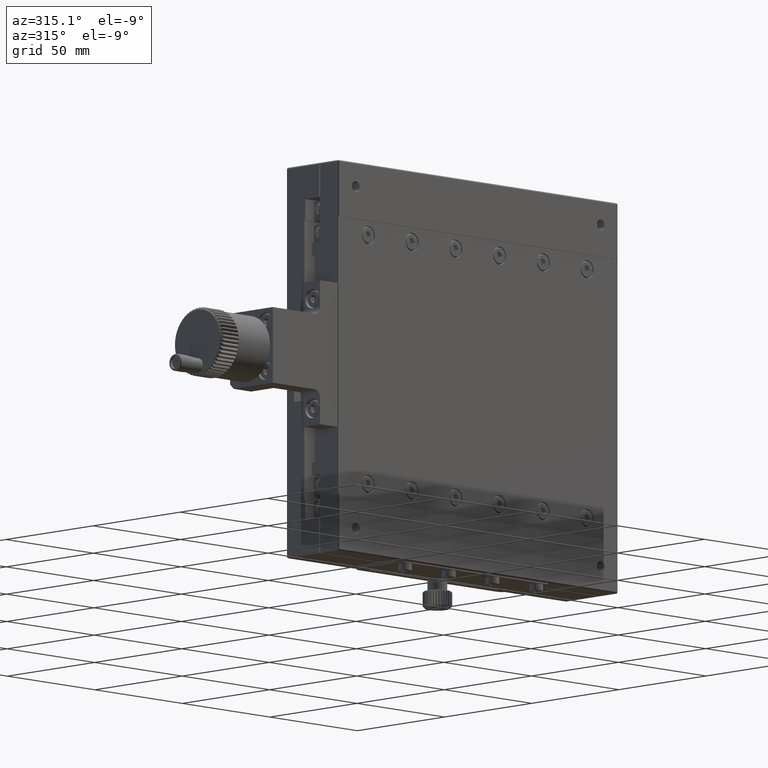
[diagram: clean part render]
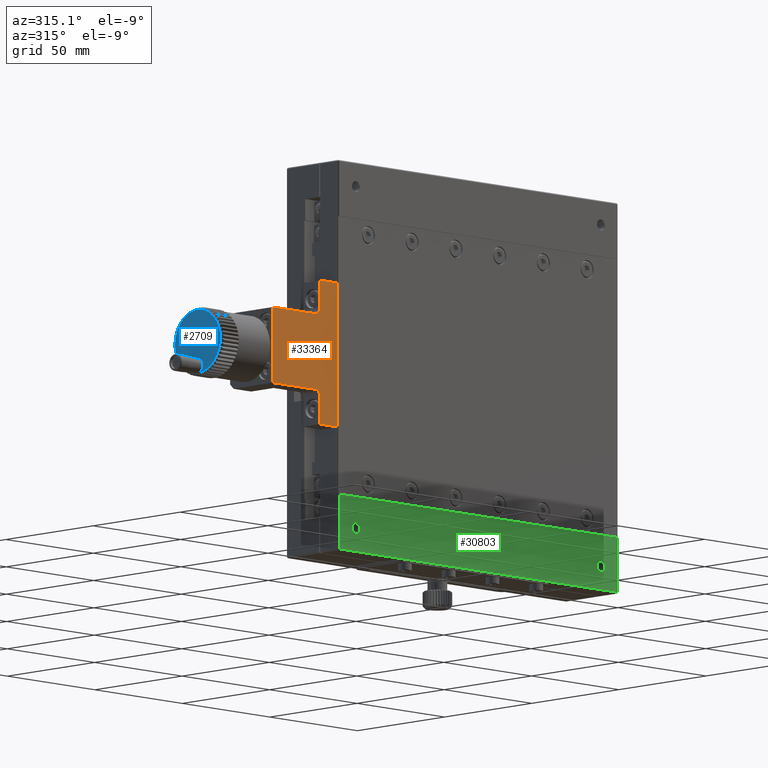
[diagram: same view with three faces highlighted in distinct colors, each labeled with its STEP entity id]
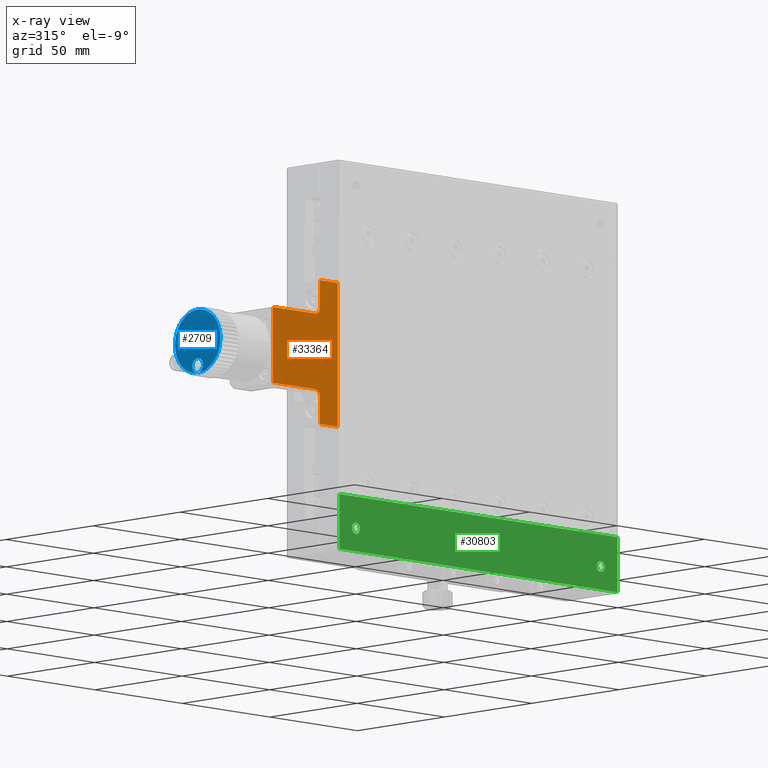
[diagram: x-ray of the same camera — body ghosted, the three highlighted faces saturated]
A machine part, auxiliary view with three faces highlighted in distinct colors.
The next image is the same camera in x-ray (body ghosted, the three faces saturated) — at least one of them is partly hidden behind the body in this view.
Their STEP definitions:

[orange] entity #33364 — the highlighted planar face has unit normal (0, 1, 0).
#434 = VERTEX_POINT ( 'NONE', #65584 ) ;
#448 = CARTESIAN_POINT ( 'NONE',  ( -196.9999999999999716, 0.5000000000000001110, -15.50000000000000178 ) ) ;
#804 = ORIENTED_EDGE ( 'NONE', *, *, #51371, .F. ) ;
#1085 = VECTOR ( 'NONE', #42197, 1000.000000000000000 ) ;
#4206 = DIRECTION ( 'NONE',  ( -1.000000000000000000, -0.000000000000000000, 0.000000000000000000 ) ) ;
#5408 = CARTESIAN_POINT ( 'NONE',  ( -196.9999999999999716, 0.5000000000000001110, 15.50000000000000000 ) ) ;
#6483 = VERTEX_POINT ( 'NONE', #448 ) ;
#6760 = ORIENTED_EDGE ( 'NONE', *, *, #22446, .F. ) ;
#8707 = CARTESIAN_POINT ( 'NONE',  ( -173.0000000000000284, 0.5000000000000004441, -18.50000000000000000 ) ) ;
#9053 = DIRECTION ( 'NONE',  ( 0.000000000000000000, -1.000000000000000000, 0.000000000000000000 ) ) ;
#9582 = DIRECTION ( 'NONE',  ( 0.000000000000000000, -0.000000000000000000, 1.000000000000000000 ) ) ;
#10237 = ORIENTED_EDGE ( 'NONE', *, *, #58634, .F. ) ;
#10876 = LINE ( 'NONE', #56347, #12486 ) ;
#12486 = VECTOR ( 'NONE', #34444, 1000.000000000000000 ) ;
#13791 = VECTOR ( 'NONE', #39583, 1000.000000000000000 ) ;
#16606 = DIRECTION ( 'NONE',  ( 0.000000000000000000, -0.000000000000000000, 1.000000000000000000 ) ) ;
#17812 = AXIS2_PLACEMENT_3D ( 'NONE', #30709, #58095, #24147 ) ;
#17978 = CARTESIAN_POINT ( 'NONE',  ( -170.0000000000000000, 0.5000000000000003331, -29.50000000000000355 ) ) ;
#18569 = LINE ( 'NONE', #39725, #43014 ) ;
#18712 = VECTOR ( 'NONE', #67171, 1000.000000000000000 ) ;
#19382 = ORIENTED_EDGE ( 'NONE', *, *, #33422, .F. ) ;
#19679 = EDGE_CURVE ( 'NONE', #46978, #40762, #31923, .T. ) ;
#20147 = LINE ( 'NONE', #69768, #68600 ) ;
#22063 = PLANE ( 'NONE',  #65058 ) ;
#22446 = EDGE_CURVE ( 'NONE', #34079, #46978, #49298, .T. ) ;
#22762 = LINE ( 'NONE', #58457, #13791 ) ;
#24147 = DIRECTION ( 'NONE',  ( 0.000000000000000000, 0.000000000000000000, -1.000000000000000000 ) ) ;
#24519 = VERTEX_POINT ( 'NONE', #63286 ) ;
#24628 = ORIENTED_EDGE ( 'NONE', *, *, #71094, .F. ) ;
#24908 = CARTESIAN_POINT ( 'NONE',  ( -173.0000000000000284, 0.5000000000000000000, 29.50000000000000355 ) ) ;
#25639 = EDGE_CURVE ( 'NONE', #41382, #34079, #18569, .T. ) ;
#28330 = ORIENTED_EDGE ( 'NONE', *, *, #25639, .F. ) ;
#30709 = CARTESIAN_POINT ( 'NONE',  ( -173.0000000000000284, 0.5000000000000004441, 18.50000000000000000 ) ) ;
#31555 = CARTESIAN_POINT ( 'NONE',  ( -173.0000000000000284, 0.5000000000000000000, -15.50000000000000355 ) ) ;
#31923 = LINE ( 'NONE', #52787, #1085 ) ;
#33364 = ADVANCED_FACE ( 'NONE', ( #71673 ), #22063, .F. ) ;
#33422 = EDGE_CURVE ( 'NONE', #24519, #45056, #22762, .T. ) ;
#33591 = CARTESIAN_POINT ( 'NONE',  ( -170.0000000000000000, 0.5000000000000004441, -18.50000000000000000 ) ) ;
#34079 = VERTEX_POINT ( 'NONE', #42306 ) ;
#34444 = DIRECTION ( 'NONE',  ( -0.000000000000000000, -0.000000000000000000, 1.000000000000000000 ) ) ;
#39583 = DIRECTION ( 'NONE',  ( -0.000000000000000000, -0.000000000000000000, -1.000000000000000000 ) ) ;
#39725 = CARTESIAN_POINT ( 'NONE',  ( -173.0000000000000284, 0.5000000000000000000, 15.50000000000000000 ) ) ;
#40762 = VERTEX_POINT ( 'NONE', #44924 ) ;
#41382 = VERTEX_POINT ( 'NONE', #5408 ) ;
#42197 = DIRECTION ( 'NONE',  ( -0.000000000000000000, -0.000000000000000000, 1.000000000000000000 ) ) ;
#42306 = CARTESIAN_POINT ( 'NONE',  ( -173.0000000000000284, 0.5000000000000004441, 15.49999999999998401 ) ) ;
#43014 = VECTOR ( 'NONE', #61615, 1000.000000000000000 ) ;
#44350 = DIRECTION ( 'NONE',  ( 0.000000000000000000, 1.000000000000000000, 0.000000000000000000 ) ) ;
#44878 = EDGE_CURVE ( 'NONE', #434, #6483, #48336, .T. ) ;
#44924 = CARTESIAN_POINT ( 'NONE',  ( -170.0000000000000000, 0.5000000000000003331, 29.50000000000000355 ) ) ;
#45056 = VERTEX_POINT ( 'NONE', #54521 ) ;
#46978 = VERTEX_POINT ( 'NONE', #55109 ) ;
#48336 = LINE ( 'NONE', #31555, #71287 ) ;
#48735 = CARTESIAN_POINT ( 'NONE',  ( -173.0000000000000284, 0.5000000000000000000, 18.50000000000000000 ) ) ;
#49298 = CIRCLE ( 'NONE', #17812, 3.000000000000030198 ) ;
#49555 = AXIS2_PLACEMENT_3D ( 'NONE', #8707, #9053, #69247 ) ;
#51371 = EDGE_CURVE ( 'NONE', #45056, #71048, #55519, .T. ) ;
#51574 = ORIENTED_EDGE ( 'NONE', *, *, #44878, .F. ) ;
#52346 = VERTEX_POINT ( 'NONE', #33591 ) ;
#52787 = CARTESIAN_POINT ( 'NONE',  ( -170.0000000000000000, 0.5000000000000004441, 18.50000000000000000 ) ) ;
#54109 = ORIENTED_EDGE ( 'NONE', *, *, #19679, .F. ) ;
#54521 = CARTESIAN_POINT ( 'NONE',  ( -160.0000000000000000, 0.5000000000000000000, -29.50000000000000355 ) ) ;
#55109 = CARTESIAN_POINT ( 'NONE',  ( -169.9999999999999716, 0.5000000000000004441, 18.50000000000000000 ) ) ;
#55519 = LINE ( 'NONE', #60661, #18712 ) ;
#56347 = CARTESIAN_POINT ( 'NONE',  ( -170.0000000000000000, 0.5000000000000004441, -29.50000000000000355 ) ) ;
#56527 = CIRCLE ( 'NONE', #49555, 3.000000000000030198 ) ;
#58095 = DIRECTION ( 'NONE',  ( 0.000000000000000000, -1.000000000000000000, 0.000000000000000000 ) ) ;
#58457 = CARTESIAN_POINT ( 'NONE',  ( -160.0000000000000000, 0.4999999999999997780, 80.00000000000000000 ) ) ;
#58634 = EDGE_CURVE ( 'NONE', #40762, #24519, #63595, .T. ) ;
#60321 = VECTOR ( 'NONE', #71471, 1000.000000000000000 ) ;
#60661 = CARTESIAN_POINT ( 'NONE',  ( -173.0000000000000284, 0.5000000000000000000, -29.50000000000000355 ) ) ;
#61615 = DIRECTION ( 'NONE',  ( 1.000000000000000000, 0.000000000000000000, -0.000000000000000000 ) ) ;
#63286 = CARTESIAN_POINT ( 'NONE',  ( -160.0000000000000000, 0.5000000000000002220, 29.50000000000000000 ) ) ;
#63595 = LINE ( 'NONE', #24908, #60321 ) ;
#65058 = AXIS2_PLACEMENT_3D ( 'NONE', #48735, #44350, #16606 ) ;
#65584 = CARTESIAN_POINT ( 'NONE',  ( -173.0000000000000284, 0.5000000000000004441, -15.50000000000000178 ) ) ;
#65647 = EDGE_CURVE ( 'NONE', #52346, #434, #56527, .T. ) ;
#67171 = DIRECTION ( 'NONE',  ( -1.000000000000000000, -0.000000000000000000, 0.000000000000000000 ) ) ;
#67561 = EDGE_CURVE ( 'NONE', #71048, #52346, #10876, .T. ) ;
#68314 = ORIENTED_EDGE ( 'NONE', *, *, #65647, .F. ) ;
#68600 = VECTOR ( 'NONE', #9582, 1000.000000000000000 ) ;
#69247 = DIRECTION ( 'NONE',  ( 0.000000000000000000, 0.000000000000000000, -1.000000000000000000 ) ) ;
#69768 = CARTESIAN_POINT ( 'NONE',  ( -197.0000000000000000, 0.5000000000000000000, 18.50000000000000000 ) ) ;
#71048 = VERTEX_POINT ( 'NONE', #17978 ) ;
#71094 = EDGE_CURVE ( 'NONE', #6483, #41382, #20147, .T. ) ;
#71238 = ORIENTED_EDGE ( 'NONE', *, *, #67561, .F. ) ;
#71287 = VECTOR ( 'NONE', #4206, 1000.000000000000000 ) ;
#71444 = EDGE_LOOP ( 'NONE', ( #51574, #68314, #71238, #804, #19382, #10237, #54109, #6760, #28330, #24628 ) ) ;
#71471 = DIRECTION ( 'NONE',  ( 1.000000000000000000, 0.000000000000000000, -0.000000000000000000 ) ) ;
#71673 = FACE_OUTER_BOUND ( 'NONE', #71444, .T. ) ;

[blue] entity #2709 — the highlighted planar face has unit normal (1, 0, 0).
#306 = CARTESIAN_POINT ( 'NONE',  ( -225.0000000000000000, 15.50000000000000178, 0.000000000000000000 ) ) ;
#457 = DIRECTION ( 'NONE',  ( 1.000000000000000000, -9.912705577010328508E-16, 0.000000000000000000 ) ) ;
#724 = DIRECTION ( 'NONE',  ( 0.000000000000000000, 1.000000000000000000, 0.000000000000000000 ) ) ;
#827 = CARTESIAN_POINT ( 'NONE',  ( -225.0000000000000000, 15.50000000000000178, 0.000000000000000000 ) ) ;
#833 = CARTESIAN_POINT ( 'NONE',  ( -225.0000000000000000, 15.50000000000000178, 0.000000000000000000 ) ) ;
#1351 = CIRCLE ( 'NONE', #67679, 12.99999999999999645 ) ;
#1387 = CARTESIAN_POINT ( 'NONE',  ( -225.0000000000000000, 15.50000000000000178, 0.000000000000000000 ) ) ;
#1524 = VERTEX_POINT ( 'NONE', #16528 ) ;
#1535 = CIRCLE ( 'NONE', #63266, 12.99999999999999645 ) ;
#1757 = VERTEX_POINT ( 'NONE', #48848 ) ;
#1820 = DIRECTION ( 'NONE',  ( 1.000000000000000000, -9.912705577010328508E-16, 0.000000000000000000 ) ) ;
#1881 = CARTESIAN_POINT ( 'NONE',  ( -225.0000000000000000, 15.50000000000000178, 0.000000000000000000 ) ) ;
#1929 = EDGE_CURVE ( 'NONE', #31126, #43631, #54233, .T. ) ;
#1963 = ORIENTED_EDGE ( 'NONE', *, *, #7854, .F. ) ;
#2107 = CARTESIAN_POINT ( 'NONE',  ( -225.0000000000000000, 15.50000000000000178, 0.000000000000000000 ) ) ;
#2193 = CARTESIAN_POINT ( 'NONE',  ( -225.0000000000000000, 15.50000000000000178, 0.000000000000000000 ) ) ;
#2210 = CIRCLE ( 'NONE', #42925, 12.99999999999999645 ) ;
#2220 = DIRECTION ( 'NONE',  ( 0.000000000000000000, 1.000000000000000000, 0.000000000000000000 ) ) ;
#2514 = ORIENTED_EDGE ( 'NONE', *, *, #18478, .F. ) ;
#2560 = DIRECTION ( 'NONE',  ( -1.000000000000000000, 0.000000000000000000, 0.000000000000000000 ) ) ;
#2571 = ORIENTED_EDGE ( 'NONE', *, *, #65085, .F. ) ;
#2709 = ADVANCED_FACE ( 'NONE', ( #36358 ), #36002, .F. ) ;
#2803 = DIRECTION ( 'NONE',  ( 1.000000000000000000, -9.912705577010328508E-16, 0.000000000000000000 ) ) ;
#2869 = VERTEX_POINT ( 'NONE', #5579 ) ;
#3111 = ORIENTED_EDGE ( 'NONE', *, *, #31425, .F. ) ;
#3288 = DIRECTION ( 'NONE',  ( 1.000000000000000000, -9.912705577010328508E-16, 0.000000000000000000 ) ) ;
#3424 = DIRECTION ( 'NONE',  ( 0.000000000000000000, 1.000000000000000000, 0.000000000000000000 ) ) ;
#3437 = CIRCLE ( 'NONE', #31354, 12.99999999999999645 ) ;
#3471 = CARTESIAN_POINT ( 'NONE',  ( -225.0000000000000000, 15.50000000000000178, 0.000000000000000000 ) ) ;
#3768 = DIRECTION ( 'NONE',  ( 1.000000000000000000, -9.912705577010328508E-16, 0.000000000000000000 ) ) ;
#4373 = EDGE_CURVE ( 'NONE', #70522, #16192, #67693, .T. ) ;
#4691 = ORIENTED_EDGE ( 'NONE', *, *, #59096, .F. ) ;
#4881 = DIRECTION ( 'NONE',  ( 0.000000000000000000, 1.000000000000000000, 0.000000000000000000 ) ) ;
#5045 = AXIS2_PLACEMENT_3D ( 'NONE', #827, #40184, #12852 ) ;
#5084 = EDGE_CURVE ( 'NONE', #41779, #10204, #20514, .T. ) ;
#5109 = CARTESIAN_POINT ( 'NONE',  ( -225.0000000000000000, 3.412905683449547922, 4.785619184902032863 ) ) ;
#5159 = CARTESIAN_POINT ( 'NONE',  ( -225.0000000000000000, 3.412905683449582561, -4.785619184902124346 ) ) ;
#5347 = AXIS2_PLACEMENT_3D ( 'NONE', #37936, #71132, #53662 ) ;
#5579 = CARTESIAN_POINT ( 'NONE',  ( -225.0000000000000000, 2.908418905324481329, 3.232968533143921075 ) ) ;
#5607 = EDGE_CURVE ( 'NONE', #34502, #27716, #32124, .T. ) ;
#5608 = VERTEX_POINT ( 'NONE', #56972 ) ;
#5637 = EDGE_CURVE ( 'NONE', #18333, #5608, #70547, .T. ) ;
#6405 = CARTESIAN_POINT ( 'NONE',  ( -225.0000000000000000, 15.50000000000000178, 0.000000000000000000 ) ) ;
#6570 = EDGE_CURVE ( 'NONE', #16192, #67599, #71906, .T. ) ;
#6750 = CARTESIAN_POINT ( 'NONE',  ( -225.0000000000000000, 15.50000000000000178, 0.000000000000000000 ) ) ;
#7374 = DIRECTION ( 'NONE',  ( 1.000000000000000000, -9.912705577010328508E-16, 0.000000000000000000 ) ) ;
#7732 = CARTESIAN_POINT ( 'NONE',  ( -225.0000000000000000, 15.50000000000000178, 0.000000000000000000 ) ) ;
#7806 = VERTEX_POINT ( 'NONE', #63889 ) ;
#7807 = AXIS2_PLACEMENT_3D ( 'NONE', #14018, #8542, #30758 ) ;
#7854 = EDGE_CURVE ( 'NONE', #53985, #22403, #40860, .T. ) ;
#7878 = CIRCLE ( 'NONE', #55572, 12.99999999999999645 ) ;
#7881 = AXIS2_PLACEMENT_3D ( 'NONE', #64774, #31210, #64439 ) ;
#8144 = EDGE_CURVE ( 'NONE', #5608, #17860, #59480, .T. ) ;
#8249 = ORIENTED_EDGE ( 'NONE', *, *, #25973, .F. ) ;
#8251 = CARTESIAN_POINT ( 'NONE',  ( -225.0000000000000000, 23.78651186673515383, 10.01667215608787664 ) ) ;
#8268 = DIRECTION ( 'NONE',  ( 0.000000000000000000, 1.000000000000000000, 0.000000000000000000 ) ) ;
#8379 = CARTESIAN_POINT ( 'NONE',  ( -225.0000000000000000, 2.602508882908406207, -1.629332036336429868 ) ) ;
#8407 = EDGE_CURVE ( 'NONE', #45443, #53793, #1351, .T. ) ;
#8449 = CARTESIAN_POINT ( 'NONE',  ( -225.0000000000000000, 28.39749111709161156, -1.629332036336249789 ) ) ;
#8542 = DIRECTION ( 'NONE',  ( 1.000000000000000000, -9.912705577010328508E-16, 0.000000000000000000 ) ) ;
#8848 = DIRECTION ( 'NONE',  ( 1.000000000000000000, -9.912705577010328508E-16, 0.000000000000000000 ) ) ;
#9409 = DIRECTION ( 'NONE',  ( 1.000000000000000000, -9.912705577010328508E-16, 0.000000000000000000 ) ) ;
#9479 = ORIENTED_EDGE ( 'NONE', *, *, #32600, .F. ) ;
#9520 = EDGE_CURVE ( 'NONE', #41103, #41779, #31632, .T. ) ;
#9592 = ORIENTED_EDGE ( 'NONE', *, *, #66732, .F. ) ;
#10204 = VERTEX_POINT ( 'NONE', #68162 ) ;
#10218 = DIRECTION ( 'NONE',  ( 0.000000000000000000, 1.000000000000000000, 0.000000000000000000 ) ) ;
#10602 = DIRECTION ( 'NONE',  ( 1.000000000000000000, -9.912705577010328508E-16, 0.000000000000000000 ) ) ;
#11099 = CIRCLE ( 'NONE', #14609, 12.99999999999999645 ) ;
#11131 = VERTEX_POINT ( 'NONE', #8379 ) ;
#11141 = VERTEX_POINT ( 'NONE', #58702 ) ;
#11379 = CIRCLE ( 'NONE', #7881, 12.99999999999999645 ) ;
#11394 = CARTESIAN_POINT ( 'NONE',  ( -225.0000000000000000, 15.50000000000000178, 0.000000000000000000 ) ) ;
#11414 = DIRECTION ( 'NONE',  ( 1.000000000000000000, -9.912705577010328508E-16, 0.000000000000000000 ) ) ;
#11961 = ORIENTED_EDGE ( 'NONE', *, *, #65965, .F. ) ;
#12072 = CARTESIAN_POINT ( 'NONE',  ( -225.0000000000000000, 28.09158109467554354, -3.232968533143833589 ) ) ;
#12275 = CARTESIAN_POINT ( 'NONE',  ( -225.0000000000000000, 15.50000000000000178, 0.000000000000000000 ) ) ;
#12348 = AXIS2_PLACEMENT_3D ( 'NONE', #26796, #49059, #71290 ) ;
#12349 = DIRECTION ( 'NONE',  ( 0.000000000000000000, 1.000000000000000000, 0.000000000000000000 ) ) ;
#12465 = CIRCLE ( 'NONE', #7807, 12.99999999999999645 ) ;
#12704 = CIRCLE ( 'NONE', #62774, 12.99999999999999645 ) ;
#12716 = CIRCLE ( 'NONE', #26686, 12.99999999999999645 ) ;
#12843 = DIRECTION ( 'NONE',  ( 0.000000000000000000, 1.000000000000000000, 0.000000000000000000 ) ) ;
#12852 = DIRECTION ( 'NONE',  ( 0.000000000000000000, 1.000000000000000000, 0.000000000000000000 ) ) ;
#12894 = ORIENTED_EDGE ( 'NONE', *, *, #48218, .F. ) ;
#13090 = AXIS2_PLACEMENT_3D ( 'NONE', #37121, #9409, #65888 ) ;
#13119 = CARTESIAN_POINT ( 'NONE',  ( -225.0000000000000000, 7.213488133264913671, -10.01667215608793882 ) ) ;
#13242 = EDGE_CURVE ( 'NONE', #1757, #21343, #26696, .T. ) ;
#13550 = CARTESIAN_POINT ( 'NONE',  ( -225.0000000000000000, 15.50000000000000178, 0.000000000000000000 ) ) ;
#13621 = CIRCLE ( 'NONE', #47418, 12.99999999999999645 ) ;
#13904 = CARTESIAN_POINT ( 'NONE',  ( -225.0000000000000000, 21.03513079034749111, -11.76275168206130139 ) ) ;
#13998 = DIRECTION ( 'NONE',  ( 1.000000000000000000, -9.912705577010328508E-16, 0.000000000000000000 ) ) ;
#14018 = CARTESIAN_POINT ( 'NONE',  ( -225.0000000000000000, 15.50000000000000178, 0.000000000000000000 ) ) ;
#14092 = CARTESIAN_POINT ( 'NONE',  ( -225.0000000000000000, 15.50000000000000178, 0.000000000000000000 ) ) ;
#14566 = DIRECTION ( 'NONE',  ( 0.000000000000000000, 1.000000000000000000, 0.000000000000000000 ) ) ;
#14609 = AXIS2_PLACEMENT_3D ( 'NONE', #33874, #1820, #724 ) ;
#14903 = ORIENTED_EDGE ( 'NONE', *, *, #46565, .F. ) ;
#15054 = CARTESIAN_POINT ( 'NONE',  ( -225.0000000000000000, 15.50000000000000178, 0.000000000000000000 ) ) ;
#15059 = CARTESIAN_POINT ( 'NONE',  ( -225.0000000000000000, 15.50000000000000178, 0.000000000000000000 ) ) ;
#15198 = CIRCLE ( 'NONE', #39667, 12.99999999999999645 ) ;
#15568 = DIRECTION ( 'NONE',  ( 0.000000000000000000, 1.000000000000000000, 0.000000000000000000 ) ) ;
#15812 = EDGE_CURVE ( 'NONE', #22178, #53985, #43125, .T. ) ;
#15814 = ORIENTED_EDGE ( 'NONE', *, *, #31744, .F. ) ;
#15858 = DIRECTION ( 'NONE',  ( 0.000000000000000000, 1.000000000000000000, 0.000000000000000000 ) ) ;
#16149 = CARTESIAN_POINT ( 'NONE',  ( -225.0000000000000000, 2.602508882908402654, 1.629332036336339939 ) ) ;
#16192 = VERTEX_POINT ( 'NONE', #69648 ) ;
#16331 = VERTEX_POINT ( 'NONE', #37536 ) ;
#16372 = ORIENTED_EDGE ( 'NONE', *, *, #67525, .F. ) ;
#16375 = EDGE_CURVE ( 'NONE', #57727, #20211, #15198, .T. ) ;
#16427 = CARTESIAN_POINT ( 'NONE',  ( -225.0000000000000000, 4.108013159426767480, 6.262797763323916911 ) ) ;
#16475 = CARTESIAN_POINT ( 'NONE',  ( -225.0000000000000000, 21.03513079034741295, 11.76275168206133337 ) ) ;
#16528 = CARTESIAN_POINT ( 'NONE',  ( -225.0000000000113687, 15.22049871197201831, -12.99699500000209440 ) ) ;
#16749 = DIRECTION ( 'NONE',  ( 0.000000000000000000, 1.000000000000000000, 0.000000000000000000 ) ) ;
#16758 = CARTESIAN_POINT ( 'NONE',  ( -225.0000000000000000, 22.46574833472887534, -10.97626303152901883 ) ) ;
#16784 = CARTESIAN_POINT ( 'NONE',  ( -225.0000000000000000, 15.50000000000000178, 0.000000000000000000 ) ) ;
#16852 = DIRECTION ( 'NONE',  ( 1.000000000000000000, -9.912705577010328508E-16, 0.000000000000000000 ) ) ;
#17019 = CARTESIAN_POINT ( 'NONE',  ( -225.0000000000000000, 24.97659215648085507, 8.899112377075269364 ) ) ;
#17136 = ORIENTED_EDGE ( 'NONE', *, *, #55374, .F. ) ;
#17320 = CARTESIAN_POINT ( 'NONE',  ( -225.0000000000000000, 9.964869209652590598, 11.76275168206133515 ) ) ;
#17334 = CARTESIAN_POINT ( 'NONE',  ( -225.0000000000000000, 8.534251665271280984, -10.97626303152911831 ) ) ;
#17418 = CIRCLE ( 'NONE', #40796, 12.99999999999999645 ) ;
#17713 = EDGE_CURVE ( 'NONE', #1524, #28159, #21959, .T. ) ;
#17860 = VERTEX_POINT ( 'NONE', #13119 ) ;
#17878 = EDGE_CURVE ( 'NONE', #2869, #61941, #51155, .T. ) ;
#18314 = CARTESIAN_POINT ( 'NONE',  ( -225.0000000000000000, 28.39749111709160445, 1.629332036336341716 ) ) ;
#18333 = VERTEX_POINT ( 'NONE', #48348 ) ;
#18478 = EDGE_CURVE ( 'NONE', #25469, #57727, #69893, .T. ) ;
#18756 = CARTESIAN_POINT ( 'NONE',  ( -225.0000000000000000, 8.534251665271201048, 10.97626303152906857 ) ) ;
#19289 = DIRECTION ( 'NONE',  ( 1.000000000000000000, -9.912705577010328508E-16, 0.000000000000000000 ) ) ;
#19331 = CIRCLE ( 'NONE', #57843, 12.99999999999999645 ) ;
#20136 = ORIENTED_EDGE ( 'NONE', *, *, #70529, .F. ) ;
#20211 = VERTEX_POINT ( 'NONE', #18314 ) ;
#20476 = AXIS2_PLACEMENT_3D ( 'NONE', #7732, #24837, #12843 ) ;
#20514 = CIRCLE ( 'NONE', #12348, 12.99999999999999645 ) ;
#20873 = DIRECTION ( 'NONE',  ( 1.000000000000000000, -9.912705577010328508E-16, 0.000000000000000000 ) ) ;
#21220 = DIRECTION ( 'NONE',  ( 0.000000000000000000, 1.000000000000000000, 0.000000000000000000 ) ) ;
#21343 = VERTEX_POINT ( 'NONE', #25581 ) ;
#21365 = ORIENTED_EDGE ( 'NONE', *, *, #55435, .F. ) ;
#21959 = CIRCLE ( 'NONE', #41849, 3.010000000008687948 ) ;
#22145 = DIRECTION ( 'NONE',  ( 0.000000000000000000, 1.000000000000000000, 0.000000000000000000 ) ) ;
#22178 = VERTEX_POINT ( 'NONE', #54836 ) ;
#22203 = DIRECTION ( 'NONE',  ( 1.000000000000000000, -9.912705577010328508E-16, 0.000000000000000000 ) ) ;
#22244 = DIRECTION ( 'NONE',  ( 0.000000000000000000, 1.000000000000000000, 0.000000000000000000 ) ) ;
#22317 = CARTESIAN_POINT ( 'NONE',  ( -225.0000000000000000, 15.50000000000000178, 0.000000000000000000 ) ) ;
#22403 = VERTEX_POINT ( 'NONE', #52623 ) ;
#22484 = DIRECTION ( 'NONE',  ( 1.000000000000000000, -9.912705577010328508E-16, 0.000000000000000000 ) ) ;
#22611 = EDGE_CURVE ( 'NONE', #11131, #11141, #49132, .T. ) ;
#22764 = ORIENTED_EDGE ( 'NONE', *, *, #13242, .F. ) ;
#23043 = ORIENTED_EDGE ( 'NONE', *, *, #37640, .F. ) ;
#23063 = AXIS2_PLACEMENT_3D ( 'NONE', #44430, #49882, #22145 ) ;
#23306 = DIRECTION ( 'NONE',  ( 0.000000000000000000, 1.000000000000000000, 0.000000000000000000 ) ) ;
#23402 = EDGE_CURVE ( 'NONE', #34552, #59786, #25239, .T. ) ;
#23590 = DIRECTION ( 'NONE',  ( 1.000000000000000000, -9.912705577010328508E-16, 0.000000000000000000 ) ) ;
#23652 = DIRECTION ( 'NONE',  ( 1.000000000000000000, -9.912705577010328508E-16, 0.000000000000000000 ) ) ;
#23664 = DIRECTION ( 'NONE',  ( 0.000000000000000000, 0.000000000000000000, 1.000000000000000000 ) ) ;
#23968 = VERTEX_POINT ( 'NONE', #17019 ) ;
#24014 = ORIENTED_EDGE ( 'NONE', *, *, #16375, .F. ) ;
#24082 = DIRECTION ( 'NONE',  ( 1.000000000000000000, -9.912705577010328508E-16, 0.000000000000000000 ) ) ;
#24159 = EDGE_CURVE ( 'NONE', #11141, #44372, #11379, .T. ) ;
#24271 = AXIS2_PLACEMENT_3D ( 'NONE', #15054, #3768, #60258 ) ;
#24439 = AXIS2_PLACEMENT_3D ( 'NONE', #833, #65819, #15858 ) ;
#24837 = DIRECTION ( 'NONE',  ( 1.000000000000000000, -9.912705577010328508E-16, 0.000000000000000000 ) ) ;
#24850 = ORIENTED_EDGE ( 'NONE', *, *, #53168, .F. ) ;
#25233 = ORIENTED_EDGE ( 'NONE', *, *, #9520, .F. ) ;
#25239 = CIRCLE ( 'NONE', #33391, 12.99999999999999645 ) ;
#25469 = VERTEX_POINT ( 'NONE', #8449 ) ;
#25574 = DIRECTION ( 'NONE',  ( 0.000000000000000000, 1.000000000000000000, 0.000000000000000000 ) ) ;
#25581 = CARTESIAN_POINT ( 'NONE',  ( -225.0000000000000000, 26.89198684057327782, -6.262797763323831646 ) ) ;
#25803 = CARTESIAN_POINT ( 'NONE',  ( -225.0000000000000000, 15.50000000000000178, 0.000000000000000000 ) ) ;
#25973 = EDGE_CURVE ( 'NONE', #20211, #64780, #53464, .T. ) ;
#26037 = EDGE_CURVE ( 'NONE', #27444, #34502, #12716, .T. ) ;
#26260 = CARTESIAN_POINT ( 'NONE',  ( -225.0000000000113687, 15.77950128802803320, -12.99699500000208907 ) ) ;
#26300 = DIRECTION ( 'NONE',  ( 0.000000000000000000, 1.000000000000000000, 0.000000000000000000 ) ) ;
#26665 = DIRECTION ( 'NONE',  ( 1.000000000000000000, -9.912705577010328508E-16, 0.000000000000000000 ) ) ;
#26686 = AXIS2_PLACEMENT_3D ( 'NONE', #12275, #51320, #40363 ) ;
#26696 = CIRCLE ( 'NONE', #45358, 12.99999999999999645 ) ;
#26796 = CARTESIAN_POINT ( 'NONE',  ( -225.0000000000000000, 15.50000000000000178, 0.000000000000000000 ) ) ;
#26875 = CARTESIAN_POINT ( 'NONE',  ( -225.0000000000000000, 28.09158109467551512, 3.232968533143923739 ) ) ;
#27091 = DIRECTION ( 'NONE',  ( 0.000000000000000000, 0.000000000000000000, -1.000000000000000000 ) ) ;
#27273 = ORIENTED_EDGE ( 'NONE', *, *, #23402, .F. ) ;
#27444 = VERTEX_POINT ( 'NONE', #48387 ) ;
#27592 = CARTESIAN_POINT ( 'NONE',  ( -225.0000000000000000, 15.50000000000000178, 0.000000000000000000 ) ) ;
#27716 = VERTEX_POINT ( 'NONE', #38753 ) ;
#28159 = VERTEX_POINT ( 'NONE', #26260 ) ;
#28688 = EDGE_CURVE ( 'NONE', #59786, #25469, #19331, .T. ) ;
#28741 = AXIS2_PLACEMENT_3D ( 'NONE', #22317, #16852, #39109 ) ;
#28764 = DIRECTION ( 'NONE',  ( 0.000000000000000000, 1.000000000000000000, 0.000000000000000000 ) ) ;
#28932 = CARTESIAN_POINT ( 'NONE',  ( -225.0000000000000000, 23.78651186673522488, -10.01667215608781802 ) ) ;
#28960 = AXIS2_PLACEMENT_3D ( 'NONE', #59551, #48572, #65358 ) ;
#28977 = DIRECTION ( 'NONE',  ( 1.000000000000000000, -9.912705577010328508E-16, 0.000000000000000000 ) ) ;
#29043 = ORIENTED_EDGE ( 'NONE', *, *, #45681, .F. ) ;
#29347 = EDGE_CURVE ( 'NONE', #59163, #11131, #69485, .T. ) ;
#29782 = ORIENTED_EDGE ( 'NONE', *, *, #57954, .F. ) ;
#29828 = CARTESIAN_POINT ( 'NONE',  ( -225.0000000000000000, 15.50000000000000178, 0.000000000000000000 ) ) ;
#30211 = CARTESIAN_POINT ( 'NONE',  ( -225.0000000000000000, 15.50000000000000178, 0.000000000000000000 ) ) ;
#30322 = DIRECTION ( 'NONE',  ( 1.000000000000000000, -9.912705577010328508E-16, 0.000000000000000000 ) ) ;
#30358 = AXIS2_PLACEMENT_3D ( 'NONE', #40851, #46311, #28764 ) ;
#30452 = DIRECTION ( 'NONE',  ( 0.000000000000000000, 1.000000000000000000, 0.000000000000000000 ) ) ;
#30758 = DIRECTION ( 'NONE',  ( 0.000000000000000000, 1.000000000000000000, 0.000000000000000000 ) ) ;
#30849 = DIRECTION ( 'NONE',  ( 1.000000000000000000, 0.000000000000000000, 0.000000000000000000 ) ) ;
#31126 = VERTEX_POINT ( 'NONE', #17320 ) ;
#31210 = DIRECTION ( 'NONE',  ( 1.000000000000000000, -9.912705577010328508E-16, 0.000000000000000000 ) ) ;
#31354 = AXIS2_PLACEMENT_3D ( 'NONE', #33609, #457, #43504 ) ;
#31425 = EDGE_CURVE ( 'NONE', #7806, #59700, #59252, .T. ) ;
#31632 = CIRCLE ( 'NONE', #40997, 12.99999999999999645 ) ;
#31744 = EDGE_CURVE ( 'NONE', #64780, #43601, #52278, .T. ) ;
#31803 = EDGE_CURVE ( 'NONE', #58006, #69182, #60435, .T. ) ;
#31937 = ORIENTED_EDGE ( 'NONE', *, *, #31803, .F. ) ;
#31967 = AXIS2_PLACEMENT_3D ( 'NONE', #54825, #30849, #27091 ) ;
#32035 = AXIS2_PLACEMENT_3D ( 'NONE', #67614, #40255, #55585 ) ;
#32123 = CIRCLE ( 'NONE', #41499, 12.99999999999999645 ) ;
#32124 = CIRCLE ( 'NONE', #20476, 12.99999999999999645 ) ;
#32539 = CIRCLE ( 'NONE', #52434, 12.99999999999999645 ) ;
#32600 = EDGE_CURVE ( 'NONE', #43601, #60783, #68506, .T. ) ;
#32886 = EDGE_CURVE ( 'NONE', #69182, #56049, #45165, .T. ) ;
#33391 = AXIS2_PLACEMENT_3D ( 'NONE', #54347, #22203, #16749 ) ;
#33531 = CARTESIAN_POINT ( 'NONE',  ( -225.0000000000000000, 15.50000000000000178, 0.000000000000000000 ) ) ;
#33609 = CARTESIAN_POINT ( 'NONE',  ( -225.0000000000000000, 15.50000000000000178, 0.000000000000000000 ) ) ;
#33775 = EDGE_CURVE ( 'NONE', #60783, #66217, #1535, .T. ) ;
#33874 = CARTESIAN_POINT ( 'NONE',  ( -225.0000000000000000, 15.50000000000000178, 0.000000000000000000 ) ) ;
#34075 = ORIENTED_EDGE ( 'NONE', *, *, #5084, .F. ) ;
#34148 = DIRECTION ( 'NONE',  ( 1.000000000000000000, -9.912705577010328508E-16, 0.000000000000000000 ) ) ;
#34312 = DIRECTION ( 'NONE',  ( 0.000000000000000000, 1.000000000000000000, 0.000000000000000000 ) ) ;
#34502 = VERTEX_POINT ( 'NONE', #46957 ) ;
#34552 = VERTEX_POINT ( 'NONE', #42530 ) ;
#34759 = AXIS2_PLACEMENT_3D ( 'NONE', #6405, #67683, #60791 ) ;
#34963 = VERTEX_POINT ( 'NONE', #38002 ) ;
#35496 = VERTEX_POINT ( 'NONE', #8251 ) ;
#35802 = DIRECTION ( 'NONE',  ( 0.000000000000000000, 1.000000000000000000, 0.000000000000000000 ) ) ;
#35970 = AXIS2_PLACEMENT_3D ( 'NONE', #44622, #11414, #65431 ) ;
#36002 = PLANE ( 'NONE',  #31967 ) ;
#36352 = ORIENTED_EDGE ( 'NONE', *, *, #44982, .F. ) ;
#36358 = FACE_OUTER_BOUND ( 'NONE', #58712, .T. ) ;
#36655 = EDGE_CURVE ( 'NONE', #51724, #47972, #11099, .T. ) ;
#36766 = ORIENTED_EDGE ( 'NONE', *, *, #56099, .F. ) ;
#37121 = CARTESIAN_POINT ( 'NONE',  ( -225.0000000000000000, 15.50000000000000178, 0.000000000000000000 ) ) ;
#37285 = ORIENTED_EDGE ( 'NONE', *, *, #17713, .F. ) ;
#37536 = CARTESIAN_POINT ( 'NONE',  ( -225.0000000000000000, 4.982779073122910241, 7.641208279804136083 ) ) ;
#37633 = AXIS2_PLACEMENT_3D ( 'NONE', #14092, #2803, #8268 ) ;
#37640 = EDGE_CURVE ( 'NONE', #59700, #16331, #69432, .T. ) ;
#37719 = CARTESIAN_POINT ( 'NONE',  ( -225.0000000000000000, 15.50000000000000178, 0.000000000000000000 ) ) ;
#37936 = CARTESIAN_POINT ( 'NONE',  ( -225.0000000000000000, 15.50000000000000178, 0.000000000000000000 ) ) ;
#38002 = CARTESIAN_POINT ( 'NONE',  ( -225.0000000000000000, 22.46574833472879718, 10.97626303152906857 ) ) ;
#38469 = EDGE_CURVE ( 'NONE', #56049, #22178, #66030, .T. ) ;
#38753 = CARTESIAN_POINT ( 'NONE',  ( -225.0000000000000000, 19.51722092687546706, -12.36373471184020900 ) ) ;
#39096 = ORIENTED_EDGE ( 'NONE', *, *, #8144, .F. ) ;
#39109 = DIRECTION ( 'NONE',  ( 0.000000000000000000, 1.000000000000000000, 0.000000000000000000 ) ) ;
#39321 = ORIENTED_EDGE ( 'NONE', *, *, #56375, .F. ) ;
#39535 = CIRCLE ( 'NONE', #48870, 12.99999999999999645 ) ;
#39598 = VERTEX_POINT ( 'NONE', #13904 ) ;
#39667 = AXIS2_PLACEMENT_3D ( 'NONE', #53235, #3288, #63561 ) ;
#39808 = CARTESIAN_POINT ( 'NONE',  ( -225.0000000000000000, 6.023407843519144933, 8.899112377075269364 ) ) ;
#40013 = DIRECTION ( 'NONE',  ( 1.000000000000000000, -9.912705577010328508E-16, 0.000000000000000000 ) ) ;
#40184 = DIRECTION ( 'NONE',  ( 1.000000000000000000, -9.912705577010328508E-16, 0.000000000000000000 ) ) ;
#40255 = DIRECTION ( 'NONE',  ( 1.000000000000000000, -9.912705577010328508E-16, 0.000000000000000000 ) ) ;
#40363 = DIRECTION ( 'NONE',  ( 0.000000000000000000, 1.000000000000000000, 0.000000000000000000 ) ) ;
#40498 = AXIS2_PLACEMENT_3D ( 'NONE', #62793, #46373, #51842 ) ;
#40796 = AXIS2_PLACEMENT_3D ( 'NONE', #11394, #60303, #4881 ) ;
#40851 = CARTESIAN_POINT ( 'NONE',  ( -225.0000000000000000, 15.50000000000000178, 0.000000000000000000 ) ) ;
#40860 = CIRCLE ( 'NONE', #65284, 12.99999999999999645 ) ;
#40997 = AXIS2_PLACEMENT_3D ( 'NONE', #15059, #20873, #21220 ) ;
#41103 = VERTEX_POINT ( 'NONE', #16758 ) ;
#41499 = AXIS2_PLACEMENT_3D ( 'NONE', #67334, #54979, #61512 ) ;
#41779 = VERTEX_POINT ( 'NONE', #28932 ) ;
#41849 = AXIS2_PLACEMENT_3D ( 'NONE', #56494, #2560, #23664 ) ;
#42258 = CARTESIAN_POINT ( 'NONE',  ( -225.0000000000000000, 13.06404291038493426, 12.76973425947629970 ) ) ;
#42293 = DIRECTION ( 'NONE',  ( 1.000000000000000000, -9.912705577010328508E-16, 0.000000000000000000 ) ) ;
#42530 = CARTESIAN_POINT ( 'NONE',  ( -225.0000000000000000, 27.58709431655048760, -4.785619184901947598 ) ) ;
#42925 = AXIS2_PLACEMENT_3D ( 'NONE', #25803, #66962, #15568 ) ;
#42937 = AXIS2_PLACEMENT_3D ( 'NONE', #58820, #8848, #70455 ) ;
#43125 = CIRCLE ( 'NONE', #48956, 12.99999999999999645 ) ;
#43428 = CARTESIAN_POINT ( 'NONE',  ( -225.0000000000000000, 15.50000000000000178, 0.000000000000000000 ) ) ;
#43504 = DIRECTION ( 'NONE',  ( 0.000000000000000000, 1.000000000000000000, 0.000000000000000000 ) ) ;
#43601 = VERTEX_POINT ( 'NONE', #55608 ) ;
#43631 = VERTEX_POINT ( 'NONE', #18756 ) ;
#43653 = CIRCLE ( 'NONE', #32035, 12.99999999999999645 ) ;
#43821 = AXIS2_PLACEMENT_3D ( 'NONE', #13550, #57350, #35802 ) ;
#44367 = ORIENTED_EDGE ( 'NONE', *, *, #38469, .F. ) ;
#44372 = VERTEX_POINT ( 'NONE', #5159 ) ;
#44430 = CARTESIAN_POINT ( 'NONE',  ( -225.0000000000000000, 15.50000000000000178, 0.000000000000000000 ) ) ;
#44622 = CARTESIAN_POINT ( 'NONE',  ( -225.0000000000000000, 15.50000000000000178, 0.000000000000000000 ) ) ;
#44756 = DIRECTION ( 'NONE',  ( 0.000000000000000000, 1.000000000000000000, 0.000000000000000000 ) ) ;
#44760 = ORIENTED_EDGE ( 'NONE', *, *, #50171, .F. ) ;
#44837 = DIRECTION ( 'NONE',  ( 1.000000000000000000, -9.912705577010328508E-16, 0.000000000000000000 ) ) ;
#44956 = CIRCLE ( 'NONE', #63615, 12.99999999999999645 ) ;
#44982 = EDGE_CURVE ( 'NONE', #35496, #34963, #71344, .T. ) ;
#45165 = CIRCLE ( 'NONE', #49904, 12.99999999999999645 ) ;
#45358 = AXIS2_PLACEMENT_3D ( 'NONE', #66044, #54400, #26300 ) ;
#45443 = VERTEX_POINT ( 'NONE', #49692 ) ;
#45525 = ORIENTED_EDGE ( 'NONE', *, *, #59645, .F. ) ;
#45681 = EDGE_CURVE ( 'NONE', #28159, #27444, #49301, .T. ) ;
#45798 = DIRECTION ( 'NONE',  ( 0.000000000000000000, 1.000000000000000000, 0.000000000000000000 ) ) ;
#45865 = DIRECTION ( 'NONE',  ( 0.000000000000000000, 1.000000000000000000, 0.000000000000000000 ) ) ;
#46224 = ORIENTED_EDGE ( 'NONE', *, *, #29347, .F. ) ;
#46311 = DIRECTION ( 'NONE',  ( 1.000000000000000000, -9.912705577010328508E-16, 0.000000000000000000 ) ) ;
#46373 = DIRECTION ( 'NONE',  ( 1.000000000000000000, -9.912705577010328508E-16, 0.000000000000000000 ) ) ;
#46565 = EDGE_CURVE ( 'NONE', #59717, #58006, #17418, .T. ) ;
#46957 = CARTESIAN_POINT ( 'NONE',  ( -225.0000000000000000, 17.93595708961515811, -12.76973425947628549 ) ) ;
#47053 = CARTESIAN_POINT ( 'NONE',  ( -225.0000000000000000, 15.50000000000000178, 0.000000000000000000 ) ) ;
#47196 = CARTESIAN_POINT ( 'NONE',  ( -225.0000000000000000, 16.31627675388129006, 12.97434746957093488 ) ) ;
#47399 = CARTESIAN_POINT ( 'NONE',  ( -225.0000000000000000, 15.50000000000000178, 0.000000000000000000 ) ) ;
#47418 = AXIS2_PLACEMENT_3D ( 'NONE', #47475, #30322, #25574 ) ;
#47475 = CARTESIAN_POINT ( 'NONE',  ( -225.0000000000000000, 15.50000000000000178, 0.000000000000000000 ) ) ;
#47591 = CIRCLE ( 'NONE', #34759, 12.99999999999999645 ) ;
#47593 = DIRECTION ( 'NONE',  ( 1.000000000000000000, -9.912705577010328508E-16, 0.000000000000000000 ) ) ;
#47869 = CARTESIAN_POINT ( 'NONE',  ( -225.0000000000000000, 15.50000000000000178, 0.000000000000000000 ) ) ;
#47972 = VERTEX_POINT ( 'NONE', #5109 ) ;
#48218 = EDGE_CURVE ( 'NONE', #43631, #7806, #12704, .T. ) ;
#48348 = CARTESIAN_POINT ( 'NONE',  ( -225.0000000000000000, 4.982779073122965308, -7.641208279804208914 ) ) ;
#48387 = CARTESIAN_POINT ( 'NONE',  ( -225.0000000000000000, 16.31627675388138599, -12.97434746957093132 ) ) ;
#48572 = DIRECTION ( 'NONE',  ( 1.000000000000000000, -9.912705577010328508E-16, 0.000000000000000000 ) ) ;
#48848 = CARTESIAN_POINT ( 'NONE',  ( -225.0000000000000000, 26.01722092687714749, -7.641208279804057035 ) ) ;
#48868 = ORIENTED_EDGE ( 'NONE', *, *, #5637, .F. ) ;
#48870 = AXIS2_PLACEMENT_3D ( 'NONE', #29828, #52108, #67780 ) ;
#48956 = AXIS2_PLACEMENT_3D ( 'NONE', #47869, #26665, #70444 ) ;
#48984 = CARTESIAN_POINT ( 'NONE',  ( -225.0000000000000000, 26.89198684057322808, 6.262797763323915134 ) ) ;
#49059 = DIRECTION ( 'NONE',  ( 1.000000000000000000, -9.912705577010328508E-16, 0.000000000000000000 ) ) ;
#49132 = CIRCLE ( 'NONE', #13090, 12.99999999999999645 ) ;
#49142 = CARTESIAN_POINT ( 'NONE',  ( -225.0000000000000000, 19.51722092687537824, 12.36373471184023920 ) ) ;
#49301 = CIRCLE ( 'NONE', #5045, 12.99999999999999645 ) ;
#49692 = CARTESIAN_POINT ( 'NONE',  ( -225.0000000000000000, 13.06404291038502308, -12.76973425947632279 ) ) ;
#49857 = DIRECTION ( 'NONE',  ( 0.000000000000000000, 1.000000000000000000, 0.000000000000000000 ) ) ;
#49882 = DIRECTION ( 'NONE',  ( 1.000000000000000000, -9.912705577010328508E-16, 0.000000000000000000 ) ) ;
#49904 = AXIS2_PLACEMENT_3D ( 'NONE', #47399, #42293, #14566 ) ;
#50171 = EDGE_CURVE ( 'NONE', #27716, #39598, #3437, .T. ) ;
#50329 = EDGE_CURVE ( 'NONE', #17860, #70522, #32539, .T. ) ;
#50587 = ORIENTED_EDGE ( 'NONE', *, *, #5607, .F. ) ;
#50850 = CARTESIAN_POINT ( 'NONE',  ( -225.0000000000000000, 26.01722092687709775, 7.641208279804133419 ) ) ;
#51155 = CIRCLE ( 'NONE', #60471, 12.99999999999999645 ) ;
#51320 = DIRECTION ( 'NONE',  ( 1.000000000000000000, -9.912705577010328508E-16, 0.000000000000000000 ) ) ;
#51417 = ORIENTED_EDGE ( 'NONE', *, *, #24159, .F. ) ;
#51724 = VERTEX_POINT ( 'NONE', #16427 ) ;
#51842 = DIRECTION ( 'NONE',  ( 0.000000000000000000, 1.000000000000000000, 0.000000000000000000 ) ) ;
#52108 = DIRECTION ( 'NONE',  ( 1.000000000000000000, -9.912705577010328508E-16, 0.000000000000000000 ) ) ;
#52278 = CIRCLE ( 'NONE', #42937, 12.99999999999999645 ) ;
#52434 = AXIS2_PLACEMENT_3D ( 'NONE', #62805, #7374, #34312 ) ;
#52623 = CARTESIAN_POINT ( 'NONE',  ( -225.0000000000000000, 11.48277907312461821, 12.36373471184023920 ) ) ;
#52901 = ORIENTED_EDGE ( 'NONE', *, *, #32886, .F. ) ;
#53051 = DIRECTION ( 'NONE',  ( 0.000000000000000000, 1.000000000000000000, 0.000000000000000000 ) ) ;
#53168 = EDGE_CURVE ( 'NONE', #10204, #1757, #56123, .T. ) ;
#53235 = CARTESIAN_POINT ( 'NONE',  ( -225.0000000000000000, 15.50000000000000178, 0.000000000000000000 ) ) ;
#53363 = ORIENTED_EDGE ( 'NONE', *, *, #17878, .F. ) ;
#53464 = CIRCLE ( 'NONE', #56955, 12.99999999999999645 ) ;
#53662 = DIRECTION ( 'NONE',  ( 0.000000000000000000, 1.000000000000000000, 0.000000000000000000 ) ) ;
#53793 = VERTEX_POINT ( 'NONE', #57254 ) ;
#53985 = VERTEX_POINT ( 'NONE', #42258 ) ;
#54233 = CIRCLE ( 'NONE', #5347, 12.99999999999999645 ) ;
#54295 = CIRCLE ( 'NONE', #70558, 12.99999999999999645 ) ;
#54347 = CARTESIAN_POINT ( 'NONE',  ( -225.0000000000000000, 15.50000000000000178, 0.000000000000000000 ) ) ;
#54359 = DIRECTION ( 'NONE',  ( 0.000000000000000000, 1.000000000000000000, 0.000000000000000000 ) ) ;
#54388 = AXIS2_PLACEMENT_3D ( 'NONE', #1881, #24082, #68603 ) ;
#54400 = DIRECTION ( 'NONE',  ( 1.000000000000000000, -9.912705577010328508E-16, 0.000000000000000000 ) ) ;
#54825 = CARTESIAN_POINT ( 'NONE',  ( -225.0000000000000000, 15.50000000000000000, 0.000000000000000000 ) ) ;
#54836 = CARTESIAN_POINT ( 'NONE',  ( -225.0000000000000000, 14.68372324611871171, 12.97434746957093488 ) ) ;
#54979 = DIRECTION ( 'NONE',  ( 1.000000000000000000, -9.912705577010328508E-16, 0.000000000000000000 ) ) ;
#55374 = EDGE_CURVE ( 'NONE', #34963, #59717, #44956, .T. ) ;
#55435 = EDGE_CURVE ( 'NONE', #39598, #41103, #32123, .T. ) ;
#55572 = AXIS2_PLACEMENT_3D ( 'NONE', #6750, #28977, #45798 ) ;
#55585 = DIRECTION ( 'NONE',  ( 0.000000000000000000, 1.000000000000000000, 0.000000000000000000 ) ) ;
#55608 = CARTESIAN_POINT ( 'NONE',  ( -225.0000000000000000, 27.58709431655045208, 4.785619184902038192 ) ) ;
#56049 = VERTEX_POINT ( 'NONE', #47196 ) ;
#56099 = EDGE_CURVE ( 'NONE', #23968, #35496, #12465, .T. ) ;
#56123 = CIRCLE ( 'NONE', #60840, 12.99999999999999645 ) ;
#56375 = EDGE_CURVE ( 'NONE', #47972, #2869, #13621, .T. ) ;
#56494 = CARTESIAN_POINT ( 'NONE',  ( -225.0000000000227374, 15.50000000000000000, -10.00000000000000000 ) ) ;
#56623 = AXIS2_PLACEMENT_3D ( 'NONE', #33531, #10602, #54359 ) ;
#56667 = AXIS2_PLACEMENT_3D ( 'NONE', #47053, #19289, #2220 ) ;
#56955 = AXIS2_PLACEMENT_3D ( 'NONE', #1387, #34148, #66980 ) ;
#56972 = CARTESIAN_POINT ( 'NONE',  ( -225.0000000000000000, 6.023407843519210658, -8.899112377075336866 ) ) ;
#57254 = CARTESIAN_POINT ( 'NONE',  ( -225.0000000000000000, 14.68372324611880586, -12.97434746957094198 ) ) ;
#57350 = DIRECTION ( 'NONE',  ( 1.000000000000000000, -9.912705577010328508E-16, 0.000000000000000000 ) ) ;
#57727 = VERTEX_POINT ( 'NONE', #60536 ) ;
#57843 = AXIS2_PLACEMENT_3D ( 'NONE', #27592, #23590, #72102 ) ;
#57954 = EDGE_CURVE ( 'NONE', #61941, #59163, #2210, .T. ) ;
#58006 = VERTEX_POINT ( 'NONE', #49142 ) ;
#58057 = CARTESIAN_POINT ( 'NONE',  ( -225.0000000000000000, 4.108013159426812777, -6.262797763323994182 ) ) ;
#58477 = ORIENTED_EDGE ( 'NONE', *, *, #36655, .F. ) ;
#58702 = CARTESIAN_POINT ( 'NONE',  ( -225.0000000000000000, 2.908418905324505754, -3.232968533144014334 ) ) ;
#58712 = EDGE_LOOP ( 'NONE', ( #29043, #37285, #66956, #69114, #45525, #70571, #69837, #68860, #39096, #48868, #16372, #9592, #51417, #71403, #46224, #29782, #53363, #39321, #58477, #11961, #23043, #3111, #12894, #60931, #4691, #1963, #67016, #44367, #52901, #31937, #14903, #17136, #36352, #36766, #20136, #68399, #9479, #15814, #8249, #24014, #2514, #70722, #27273, #2571, #22764, #24850, #34075, #25233, #21365, #44760, #50587, #63549 ) ) ;
#58820 = CARTESIAN_POINT ( 'NONE',  ( -225.0000000000000000, 15.50000000000000178, 0.000000000000000000 ) ) ;
#59096 = EDGE_CURVE ( 'NONE', #22403, #31126, #67310, .T. ) ;
#59163 = VERTEX_POINT ( 'NONE', #61184 ) ;
#59252 = CIRCLE ( 'NONE', #35970, 12.99999999999999645 ) ;
#59281 = CARTESIAN_POINT ( 'NONE',  ( -225.0000000000000000, 11.48277907312470525, -12.36373471184026585 ) ) ;
#59480 = CIRCLE ( 'NONE', #30358, 12.99999999999999645 ) ;
#59551 = CARTESIAN_POINT ( 'NONE',  ( -225.0000000000000000, 15.50000000000000178, 0.000000000000000000 ) ) ;
#59645 = EDGE_CURVE ( 'NONE', #67599, #45443, #69753, .T. ) ;
#59700 = VERTEX_POINT ( 'NONE', #39808 ) ;
#59717 = VERTEX_POINT ( 'NONE', #16475 ) ;
#59786 = VERTEX_POINT ( 'NONE', #12072 ) ;
#59970 = DIRECTION ( 'NONE',  ( 1.000000000000000000, -9.912705577010328508E-16, 0.000000000000000000 ) ) ;
#60258 = DIRECTION ( 'NONE',  ( 0.000000000000000000, 1.000000000000000000, 0.000000000000000000 ) ) ;
#60303 = DIRECTION ( 'NONE',  ( 1.000000000000000000, -9.912705577010328508E-16, 0.000000000000000000 ) ) ;
#60323 = AXIS2_PLACEMENT_3D ( 'NONE', #37719, #59970, #30452 ) ;
#60435 = CIRCLE ( 'NONE', #28960, 12.99999999999999645 ) ;
#60471 = AXIS2_PLACEMENT_3D ( 'NONE', #2193, #62327, #23306 ) ;
#60536 = CARTESIAN_POINT ( 'NONE',  ( -225.0000000000000000, 28.50000000000341061, -4.538925740497264226E-14 ) ) ;
#60783 = VERTEX_POINT ( 'NONE', #48984 ) ;
#60791 = DIRECTION ( 'NONE',  ( 0.000000000000000000, 1.000000000000000000, 0.000000000000000000 ) ) ;
#60840 = AXIS2_PLACEMENT_3D ( 'NONE', #68333, #13998, #3424 ) ;
#60931 = ORIENTED_EDGE ( 'NONE', *, *, #1929, .F. ) ;
#60960 = VERTEX_POINT ( 'NONE', #58057 ) ;
#61184 = CARTESIAN_POINT ( 'NONE',  ( -225.0000000000000000, 2.499999999996588507, 4.538925740497264226E-14 ) ) ;
#61512 = DIRECTION ( 'NONE',  ( 0.000000000000000000, 1.000000000000000000, 0.000000000000000000 ) ) ;
#61886 = DIRECTION ( 'NONE',  ( 1.000000000000000000, -9.912705577010328508E-16, 0.000000000000000000 ) ) ;
#61941 = VERTEX_POINT ( 'NONE', #16149 ) ;
#62011 = DIRECTION ( 'NONE',  ( 1.000000000000000000, -9.912705577010328508E-16, 0.000000000000000000 ) ) ;
#62327 = DIRECTION ( 'NONE',  ( 1.000000000000000000, -9.912705577010328508E-16, 0.000000000000000000 ) ) ;
#62774 = AXIS2_PLACEMENT_3D ( 'NONE', #30211, #23652, #12349 ) ;
#62793 = CARTESIAN_POINT ( 'NONE',  ( -225.0000000000000000, 15.50000000000000178, 0.000000000000000000 ) ) ;
#62805 = CARTESIAN_POINT ( 'NONE',  ( -225.0000000000000000, 15.50000000000000178, 0.000000000000000000 ) ) ;
#63260 = CARTESIAN_POINT ( 'NONE',  ( -225.0000000000000000, 17.93595708961506574, 12.76973425947630325 ) ) ;
#63266 = AXIS2_PLACEMENT_3D ( 'NONE', #16784, #62011, #22244 ) ;
#63549 = ORIENTED_EDGE ( 'NONE', *, *, #26037, .F. ) ;
#63561 = DIRECTION ( 'NONE',  ( 0.000000000000000000, 1.000000000000000000, 0.000000000000000000 ) ) ;
#63615 = AXIS2_PLACEMENT_3D ( 'NONE', #66630, #61886, #49857 ) ;
#63889 = CARTESIAN_POINT ( 'NONE',  ( -225.0000000000000000, 7.213488133264844393, 10.01667215608787842 ) ) ;
#64241 = AXIS2_PLACEMENT_3D ( 'NONE', #3471, #47593, #53051 ) ;
#64439 = DIRECTION ( 'NONE',  ( 0.000000000000000000, 1.000000000000000000, 0.000000000000000000 ) ) ;
#64774 = CARTESIAN_POINT ( 'NONE',  ( -225.0000000000000000, 15.50000000000000178, 0.000000000000000000 ) ) ;
#64780 = VERTEX_POINT ( 'NONE', #26875 ) ;
#65085 = EDGE_CURVE ( 'NONE', #21343, #34552, #43653, .T. ) ;
#65284 = AXIS2_PLACEMENT_3D ( 'NONE', #43428, #44837, #10218 ) ;
#65358 = DIRECTION ( 'NONE',  ( 0.000000000000000000, 1.000000000000000000, 0.000000000000000000 ) ) ;
#65431 = DIRECTION ( 'NONE',  ( 0.000000000000000000, 1.000000000000000000, 0.000000000000000000 ) ) ;
#65819 = DIRECTION ( 'NONE',  ( 1.000000000000000000, -9.912705577010328508E-16, 0.000000000000000000 ) ) ;
#65888 = DIRECTION ( 'NONE',  ( 0.000000000000000000, 1.000000000000000000, 0.000000000000000000 ) ) ;
#65965 = EDGE_CURVE ( 'NONE', #16331, #51724, #54295, .T. ) ;
#65970 = CIRCLE ( 'NONE', #28741, 12.99999999999999645 ) ;
#66030 = CIRCLE ( 'NONE', #54388, 12.99999999999999645 ) ;
#66044 = CARTESIAN_POINT ( 'NONE',  ( -225.0000000000000000, 15.50000000000000178, 0.000000000000000000 ) ) ;
#66217 = VERTEX_POINT ( 'NONE', #50850 ) ;
#66630 = CARTESIAN_POINT ( 'NONE',  ( -225.0000000000000000, 15.50000000000000178, 0.000000000000000000 ) ) ;
#66732 = EDGE_CURVE ( 'NONE', #44372, #60960, #65970, .T. ) ;
#66956 = ORIENTED_EDGE ( 'NONE', *, *, #71823, .F. ) ;
#66962 = DIRECTION ( 'NONE',  ( 1.000000000000000000, -9.912705577010328508E-16, 0.000000000000000000 ) ) ;
#66980 = DIRECTION ( 'NONE',  ( 0.000000000000000000, 1.000000000000000000, 0.000000000000000000 ) ) ;
#67016 = ORIENTED_EDGE ( 'NONE', *, *, #15812, .F. ) ;
#67310 = CIRCLE ( 'NONE', #23063, 12.99999999999999645 ) ;
#67334 = CARTESIAN_POINT ( 'NONE',  ( -225.0000000000000000, 15.50000000000000178, 0.000000000000000000 ) ) ;
#67525 = EDGE_CURVE ( 'NONE', #60960, #18333, #7878, .T. ) ;
#67599 = VERTEX_POINT ( 'NONE', #59281 ) ;
#67614 = CARTESIAN_POINT ( 'NONE',  ( -225.0000000000000000, 15.50000000000000178, 0.000000000000000000 ) ) ;
#67679 = AXIS2_PLACEMENT_3D ( 'NONE', #306, #22484, #44756 ) ;
#67683 = DIRECTION ( 'NONE',  ( 1.000000000000000000, -9.912705577010328508E-16, 0.000000000000000000 ) ) ;
#67693 = CIRCLE ( 'NONE', #64241, 12.99999999999999645 ) ;
#67780 = DIRECTION ( 'NONE',  ( 0.000000000000000000, 1.000000000000000000, 0.000000000000000000 ) ) ;
#68162 = CARTESIAN_POINT ( 'NONE',  ( -225.0000000000000000, 24.97659215648092257, -8.899112377075201863 ) ) ;
#68333 = CARTESIAN_POINT ( 'NONE',  ( -225.0000000000000000, 15.50000000000000178, 0.000000000000000000 ) ) ;
#68399 = ORIENTED_EDGE ( 'NONE', *, *, #33775, .F. ) ;
#68506 = CIRCLE ( 'NONE', #60323, 12.99999999999999645 ) ;
#68603 = DIRECTION ( 'NONE',  ( 0.000000000000000000, 1.000000000000000000, 0.000000000000000000 ) ) ;
#68860 = ORIENTED_EDGE ( 'NONE', *, *, #50329, .F. ) ;
#69114 = ORIENTED_EDGE ( 'NONE', *, *, #8407, .F. ) ;
#69182 = VERTEX_POINT ( 'NONE', #63260 ) ;
#69432 = CIRCLE ( 'NONE', #56623, 12.99999999999999645 ) ;
#69485 = CIRCLE ( 'NONE', #56667, 12.99999999999999645 ) ;
#69648 = CARTESIAN_POINT ( 'NONE',  ( -225.0000000000000000, 9.964869209652670534, -11.76275168206137423 ) ) ;
#69753 = CIRCLE ( 'NONE', #24271, 12.99999999999999645 ) ;
#69837 = ORIENTED_EDGE ( 'NONE', *, *, #4373, .F. ) ;
#69893 = CIRCLE ( 'NONE', #24439, 12.99999999999999645 ) ;
#70444 = DIRECTION ( 'NONE',  ( 0.000000000000000000, 1.000000000000000000, 0.000000000000000000 ) ) ;
#70455 = DIRECTION ( 'NONE',  ( 0.000000000000000000, 1.000000000000000000, 0.000000000000000000 ) ) ;
#70522 = VERTEX_POINT ( 'NONE', #17334 ) ;
#70529 = EDGE_CURVE ( 'NONE', #66217, #23968, #47591, .T. ) ;
#70547 = CIRCLE ( 'NONE', #43821, 12.99999999999999645 ) ;
#70558 = AXIS2_PLACEMENT_3D ( 'NONE', #2107, #40013, #45865 ) ;
#70571 = ORIENTED_EDGE ( 'NONE', *, *, #6570, .F. ) ;
#70722 = ORIENTED_EDGE ( 'NONE', *, *, #28688, .F. ) ;
#71132 = DIRECTION ( 'NONE',  ( 1.000000000000000000, -9.912705577010328508E-16, 0.000000000000000000 ) ) ;
#71290 = DIRECTION ( 'NONE',  ( 0.000000000000000000, 1.000000000000000000, 0.000000000000000000 ) ) ;
#71344 = CIRCLE ( 'NONE', #37633, 12.99999999999999645 ) ;
#71403 = ORIENTED_EDGE ( 'NONE', *, *, #22611, .F. ) ;
#71823 = EDGE_CURVE ( 'NONE', #53793, #1524, #39535, .T. ) ;
#71906 = CIRCLE ( 'NONE', #40498, 12.99999999999999645 ) ;
#72102 = DIRECTION ( 'NONE',  ( 0.000000000000000000, 1.000000000000000000, 0.000000000000000000 ) ) ;

[green] entity #30803 — the highlighted planar face has unit normal (0, -1, 0).
#1764 = CARTESIAN_POINT ( 'NONE',  ( -159.5000000000000000, -8.131516293641283255E-17, -79.50000000000000000 ) ) ;
#8261 = LINE ( 'NONE', #69496, #71970 ) ;
#8351 = VERTEX_POINT ( 'NONE', #24737 ) ;
#9331 = DIRECTION ( 'NONE',  ( -1.000000000000000000, 0.000000000000000000, -0.000000000000000000 ) ) ;
#10308 = DIRECTION ( 'NONE',  ( 0.000000000000000000, 0.000000000000000000, 1.000000000000000000 ) ) ;
#12538 = DIRECTION ( 'NONE',  ( 0.000000000000000000, 0.000000000000000000, 1.000000000000000000 ) ) ;
#14682 = VERTEX_POINT ( 'NONE', #53315 ) ;
#17095 = DIRECTION ( 'NONE',  ( 0.000000000000000000, 0.000000000000000000, 1.000000000000000000 ) ) ;
#17789 = FACE_OUTER_BOUND ( 'NONE', #66228, .T. ) ;
#18010 = CARTESIAN_POINT ( 'NONE',  ( -0.5000000000000002220, -2.710505431213761085E-17, -79.50000000000000000 ) ) ;
#18522 = FACE_BOUND ( 'NONE', #64562, .T. ) ;
#19219 = DIRECTION ( 'NONE',  ( 0.000000000000000000, -0.000000000000000000, -1.000000000000000000 ) ) ;
#19826 = AXIS2_PLACEMENT_3D ( 'NONE', #42781, #54094, #10308 ) ;
#21307 = LINE ( 'NONE', #43583, #24127 ) ;
#22741 = AXIS2_PLACEMENT_3D ( 'NONE', #23477, #45755, #12538 ) ;
#23477 = CARTESIAN_POINT ( 'NONE',  ( -10.00000000000000000, 0.000000000000000000, -70.00000000000000000 ) ) ;
#23806 = EDGE_CURVE ( 'NONE', #23904, #63044, #55710, .T. ) ;
#23904 = VERTEX_POINT ( 'NONE', #1764 ) ;
#24127 = VECTOR ( 'NONE', #9331, 1000.000000000000000 ) ;
#24541 = ORIENTED_EDGE ( 'NONE', *, *, #65205, .T. ) ;
#24737 = CARTESIAN_POINT ( 'NONE',  ( -150.0000000000000000, 0.000000000000000000, -67.75000000000000000 ) ) ;
#25047 = EDGE_CURVE ( 'NONE', #23904, #14682, #8261, .T. ) ;
#25064 = ORIENTED_EDGE ( 'NONE', *, *, #61263, .T. ) ;
#26917 = CARTESIAN_POINT ( 'NONE',  ( -160.0000000000000000, 0.000000000000000000, -79.50000000000000000 ) ) ;
#30803 = ADVANCED_FACE ( 'NONE', ( #17789, #52465, #18522 ), #46984, .T. ) ;
#32139 = ORIENTED_EDGE ( 'NONE', *, *, #40539, .T. ) ;
#33812 = CIRCLE ( 'NONE', #19826, 2.250000000000001776 ) ;
#34611 = LINE ( 'NONE', #39007, #62115 ) ;
#34824 = ORIENTED_EDGE ( 'NONE', *, *, #23806, .T. ) ;
#35252 = DIRECTION ( 'NONE',  ( 0.000000000000000000, 0.000000000000000000, 1.000000000000000000 ) ) ;
#35769 = VECTOR ( 'NONE', #38601, 1000.000000000000000 ) ;
#38601 = DIRECTION ( 'NONE',  ( 1.000000000000000000, 0.000000000000000000, 0.000000000000000000 ) ) ;
#39007 = CARTESIAN_POINT ( 'NONE',  ( -0.5000000000000003331, 3.252606517456513302E-16, 0.000000000000000000 ) ) ;
#40539 = EDGE_CURVE ( 'NONE', #8351, #8351, #33812, .T. ) ;
#40797 = DIRECTION ( 'NONE',  ( 0.000000000000000000, -1.000000000000000000, 0.000000000000000000 ) ) ;
#42781 = CARTESIAN_POINT ( 'NONE',  ( -150.0000000000000000, 0.000000000000000000, -70.00000000000000000 ) ) ;
#43583 = CARTESIAN_POINT ( 'NONE',  ( -160.0000000000000000, 0.000000000000000000, -57.00000000000000000 ) ) ;
#45755 = DIRECTION ( 'NONE',  ( 0.000000000000000000, 1.000000000000000000, 0.000000000000000000 ) ) ;
#46984 = PLANE ( 'NONE',  #55670 ) ;
#51976 = ORIENTED_EDGE ( 'NONE', *, *, #68890, .T. ) ;
#52465 = FACE_BOUND ( 'NONE', #56536, .T. ) ;
#53315 = CARTESIAN_POINT ( 'NONE',  ( -159.5000000000000000, 0.000000000000000000, -57.00000000000000711 ) ) ;
#54094 = DIRECTION ( 'NONE',  ( 0.000000000000000000, 1.000000000000000000, 0.000000000000000000 ) ) ;
#55670 = AXIS2_PLACEMENT_3D ( 'NONE', #69213, #40797, #19219 ) ;
#55710 = LINE ( 'NONE', #26917, #35769 ) ;
#56367 = VERTEX_POINT ( 'NONE', #71685 ) ;
#56536 = EDGE_LOOP ( 'NONE', ( #24541 ) ) ;
#58834 = CIRCLE ( 'NONE', #22741, 2.250000000000001776 ) ;
#61263 = EDGE_CURVE ( 'NONE', #63044, #61535, #34611, .T. ) ;
#61535 = VERTEX_POINT ( 'NONE', #70327 ) ;
#62115 = VECTOR ( 'NONE', #17095, 1000.000000000000000 ) ;
#63044 = VERTEX_POINT ( 'NONE', #18010 ) ;
#64037 = ORIENTED_EDGE ( 'NONE', *, *, #25047, .F. ) ;
#64562 = EDGE_LOOP ( 'NONE', ( #32139 ) ) ;
#65205 = EDGE_CURVE ( 'NONE', #56367, #56367, #58834, .T. ) ;
#66228 = EDGE_LOOP ( 'NONE', ( #34824, #25064, #51976, #64037 ) ) ;
#68890 = EDGE_CURVE ( 'NONE', #61535, #14682, #21307, .T. ) ;
#69213 = CARTESIAN_POINT ( 'NONE',  ( -160.0000000000000000, 0.000000000000000000, 80.00000000000000000 ) ) ;
#69496 = CARTESIAN_POINT ( 'NONE',  ( -159.5000000000000000, 0.000000000000000000, 80.00000000000000000 ) ) ;
#70327 = CARTESIAN_POINT ( 'NONE',  ( -0.5000000000000006661, -5.421010862427522170E-17, -57.00000000000000711 ) ) ;
#71685 = CARTESIAN_POINT ( 'NONE',  ( -10.00000000000000000, 0.000000000000000000, -67.75000000000000000 ) ) ;
#71970 = VECTOR ( 'NONE', #35252, 1000.000000000000000 ) ;